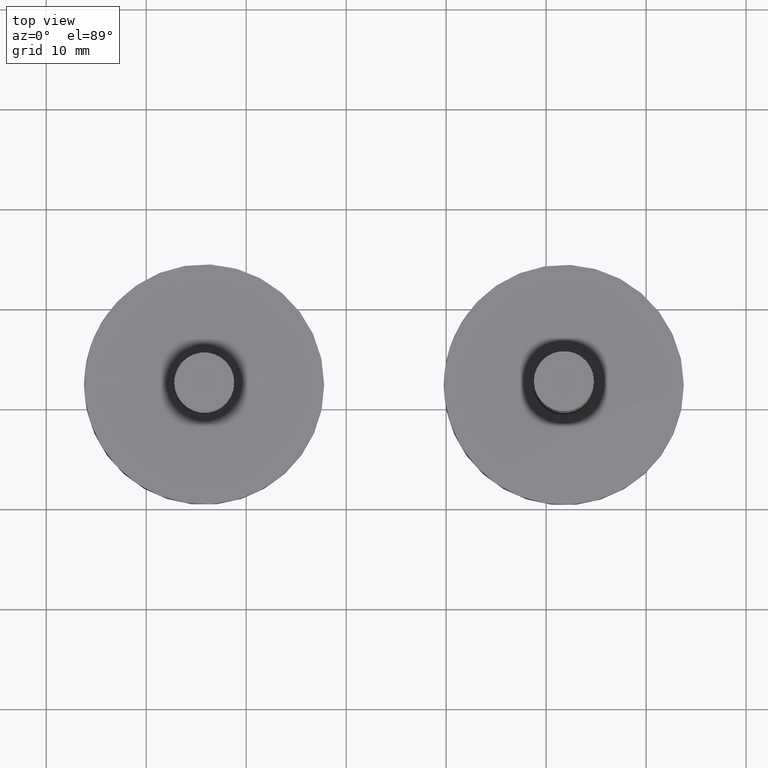
[diagram: clean part render]
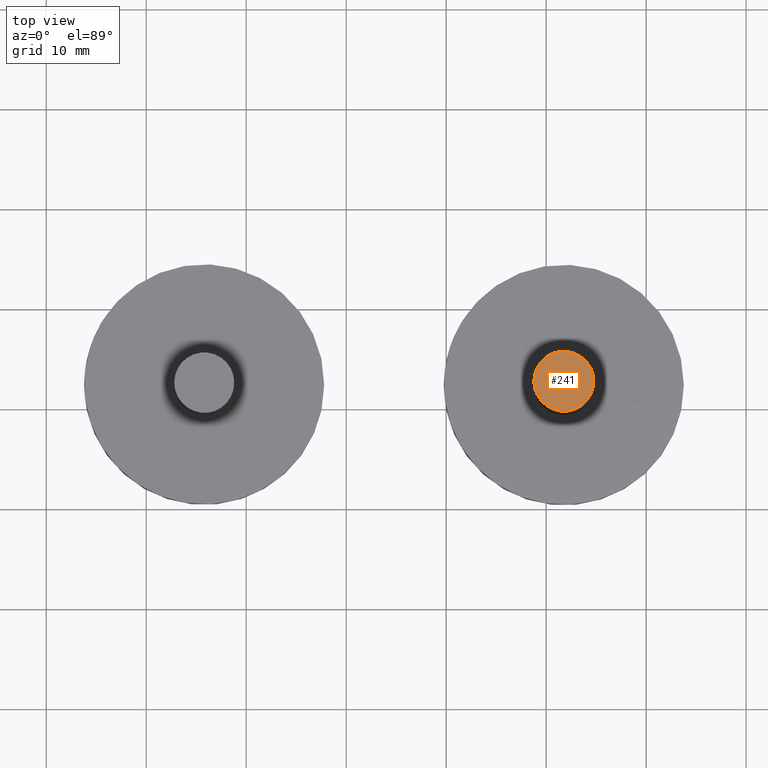
[diagram: same view with one face highlighted and labeled with its STEP entity id]
A machine part, top view. The second image highlights one B-rep face of the part: STEP entity #241.
In plain terms, the highlighted planar face has unit normal (0, 0, 1).
Its self-contained STEP definition (entity closure, byte-faithful):
#40=PLANE('',#279);
#75=FACE_OUTER_BOUND('',#107,.T.);
#107=EDGE_LOOP('',(#207));
#135=CIRCLE('',#277,3.);
#155=VERTEX_POINT('',#428);
#175=EDGE_CURVE('',#155,#155,#135,.T.);
#207=ORIENTED_EDGE('',*,*,#175,.T.);
#241=ADVANCED_FACE('',(#75),#40,.T.);
#277=AXIS2_PLACEMENT_3D('',#429,#348,#349);
#279=AXIS2_PLACEMENT_3D('',#432,#352,#353);
#348=DIRECTION('center_axis',(0.,0.,1.));
#349=DIRECTION('ref_axis',(-1.,0.,0.));
#352=DIRECTION('center_axis',(0.,0.,1.));
#353=DIRECTION('ref_axis',(1.,0.,0.));
#428=CARTESIAN_POINT('',(3.,3.67394039744206E-16,34.));
#429=CARTESIAN_POINT('Origin',(0.,0.,34.));
#432=CARTESIAN_POINT('Origin',(-1.84812801154609E-16,-7.70988211545247E-17,
34.));